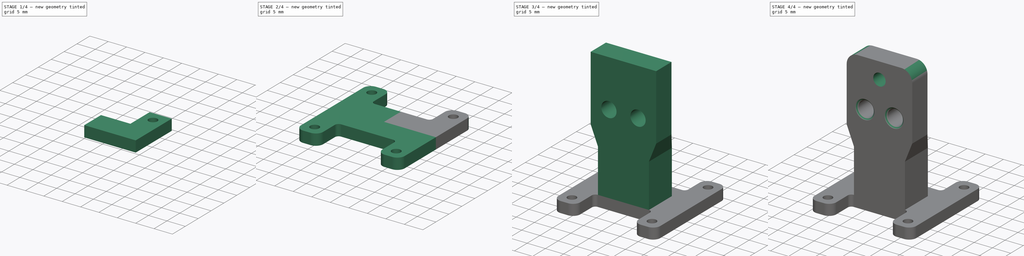
[diagram: build sequence overview — one tinted view per stage of 4, left to right]
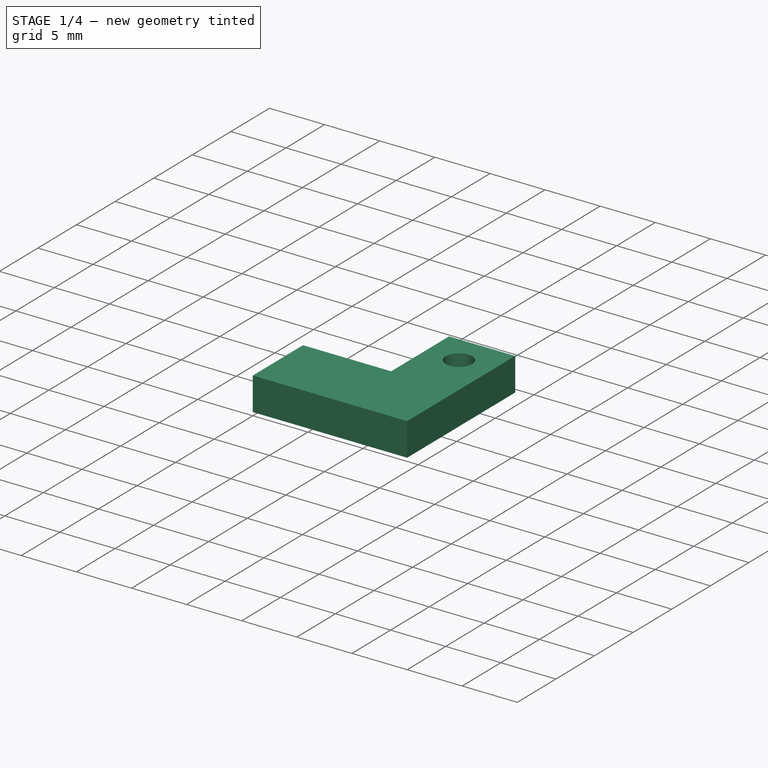
[diagram: stage 1 of 4 — iso view after this stage's code; geometry added in this stage tinted green]
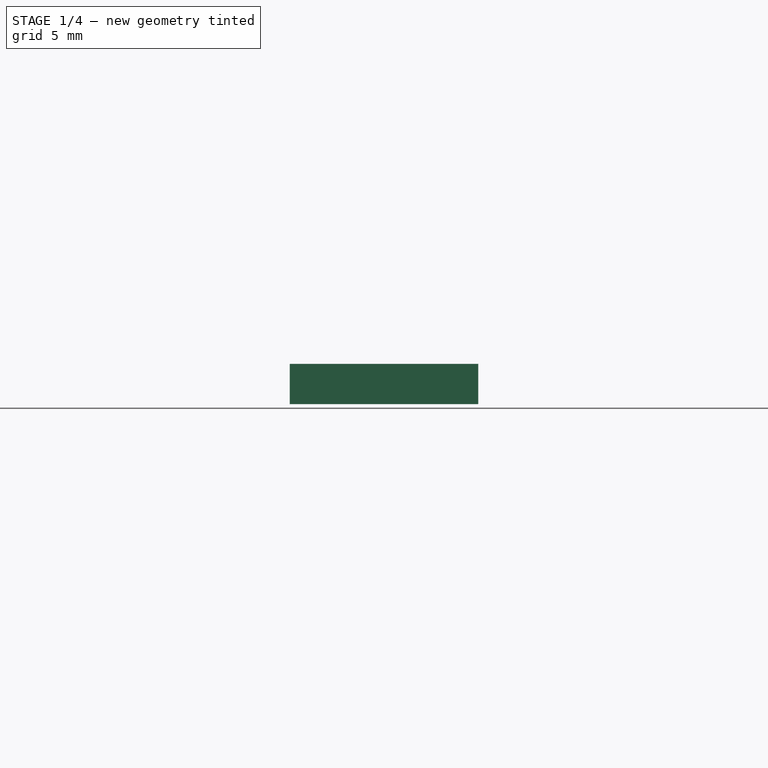
[diagram: stage 1 of 4 — front view after this stage's code; geometry added in this stage tinted green]
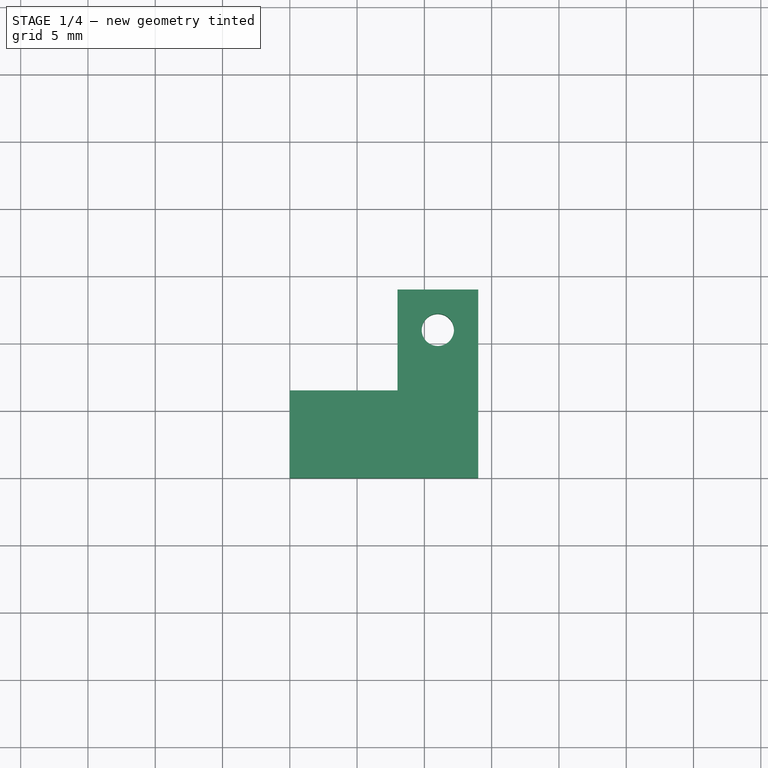
[diagram: stage 1 of 4 — top view after this stage's code; geometry added in this stage tinted green]
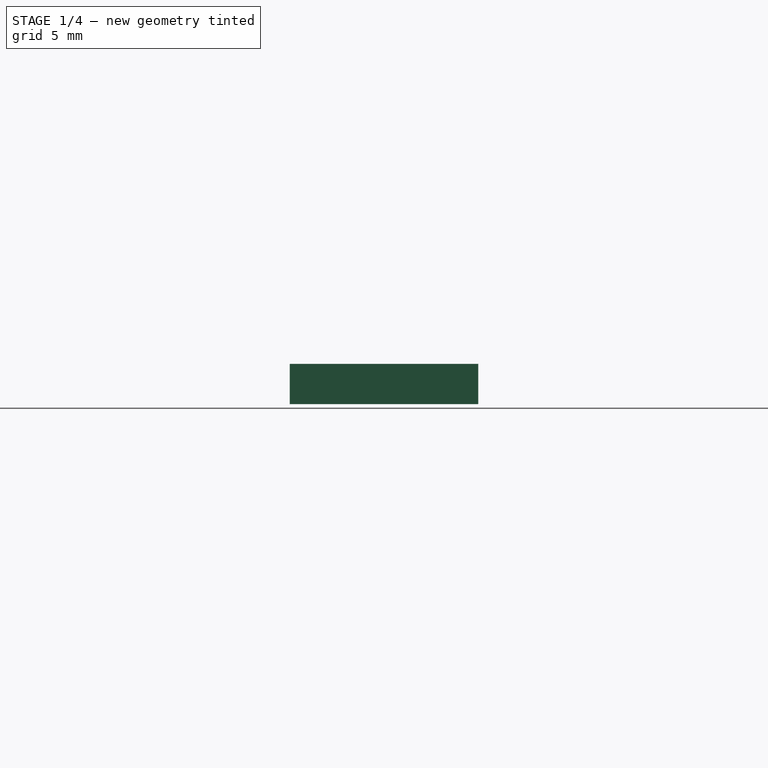
[diagram: stage 1 of 4 — right view after this stage's code; geometry added in this stage tinted green]
FCSTD DOCUMENT  (FreeCAD 0.19R)
Label: camera_holder
License: All rights reserved
LicenseURL: http://en.wikipedia.org/wiki/All_rights_reserved
objects: Sketcher::SketchObject×8, PartDesign::Pad×3, PartDesign::Fillet×3, PartDesign::Hole×2, PartDesign::Pocket×2, PartDesign::Mirrored×2, PartDesign::MultiTransform×1, PartDesign::AdditiveLoft×1, PartDesign::Chamfer×1, PartDesign::Body×1
note: 36 computed .brp shape members not serialized (recipe doc carries the construction recipe); baked Part::Feature solids carry a one-line shape summary decoded from their .brp

FEATURE [Sketcher::SketchObject] Sketch  label="bask_sk"
  FullyConstrained = true
  MapMode = 5
  Support = -> [XY_Plane]
  sketch-geometry (4):
    g0: LineSegment StartX=0 StartY=0 StartZ=0 EndX=14 EndY=0 EndZ=0
    g1: LineSegment StartX=14 StartY=0 StartZ=0 EndX=14 EndY=14 EndZ=0
    g2: LineSegment StartX=14 StartY=14 StartZ=0 EndX=0 EndY=14 EndZ=0
    g3: LineSegment StartX=0 StartY=14 StartZ=0 EndX=0 EndY=0 EndZ=0
  constraints (11):
    c: Coincident(g0,g1)
    c: Coincident(g1,g2)
    c: Coincident(g2,g3)
    c: Coincident(g3,g0)
    c: Horizontal(g0)
    c: Horizontal(g2)
    c: Vertical(g1)
    c: Vertical(g3)
    c: Coincident(g0,g-1)
    c: Distance(g2) = 14
    c: Distance(g1) = 14
FEATURE [PartDesign::Pad] Pad  label="base"
  Direction = (1,1,1)
  Length = 3
  Length2 = 100
  Profile = -> Sketch
  Reversed = true
  Type = 0
FEATURE [Sketcher::SketchObject] Sketch001  label="M2_hole_sk"
  FullyConstrained = true
  MapMode = 5
  Support = -> [Pad]
  sketch-geometry (1):
    g0: Circle CenterX=11 CenterY=11 CenterZ=0 NormalX=0 NormalY=0 NormalZ=1 AngleXU=0 Radius=1
  constraints (3):
    c: DistanceX(g-2,g0) = 11
    c: DistanceY(g-1,g0) = 11
    c: Radius(g0) = 1
FEATURE [PartDesign::Hole] Hole  label="M2_hole"
  BaseFeature = -> Pad
  Depth = 25
  DepthType = 1
  Diameter = 2.4
  DrillForDepth = false
  DrillPoint = 1
  DrillPointAngle = 118
  HoleCutCountersinkAngle = 90
  HoleCutCustomValues = false
  HoleCutDepth = 0
  HoleCutDiameter = 6.1
  HoleCutType = 0
  ModelActualThread = false
  Profile = -> Sketch001
  Tapered = false
  TaperedAngle = 90
  ThreadAngle = 0
  ThreadClass = 0
  ThreadCutOffInner = 0
  ThreadCutOffOuter = 0
  ThreadDirection = 0
  ThreadFit = 0
  ThreadPitch = 0
  ThreadSize = 6
  ThreadType = 1
  Threaded = false
FEATURE [Sketcher::SketchObject] Sketch002  label="usb_hole_sk"
  ExternalGeometry = -> [Hole]
  FullyConstrained = true
  MapMode = 5
  Support = -> [Hole]
  sketch-geometry (4):
    g0: LineSegment StartX=0 StartY=14 StartZ=0 EndX=8 EndY=14 EndZ=0
    g1: LineSegment StartX=8 StartY=14 StartZ=0 EndX=8 EndY=6.5 EndZ=0
    g2: LineSegment StartX=8 StartY=6.5 StartZ=0 EndX=0 EndY=6.5 EndZ=0
    g3: LineSegment StartX=0 StartY=6.5 StartZ=0 EndX=0 EndY=14 EndZ=0
  constraints (11):
    c: Coincident(g0,g1)
    c: Coincident(g1,g2)
    c: Coincident(g2,g3)
    c: Coincident(g3,g0)
    c: Horizontal(g0)
    c: Horizontal(g2)
    c: Vertical(g1)
    c: Vertical(g3)
    c: Coincident(g0,g-4)
    c: DistanceX(g0,g-3) = 3
    c: Distance(g3) = 7.5
FEATURE [PartDesign::Pocket] Pocket  label="usb_hole"
  BaseFeature = -> Hole
  Length = 5
  Length2 = 100
  Profile = -> Sketch002
  Type = 1
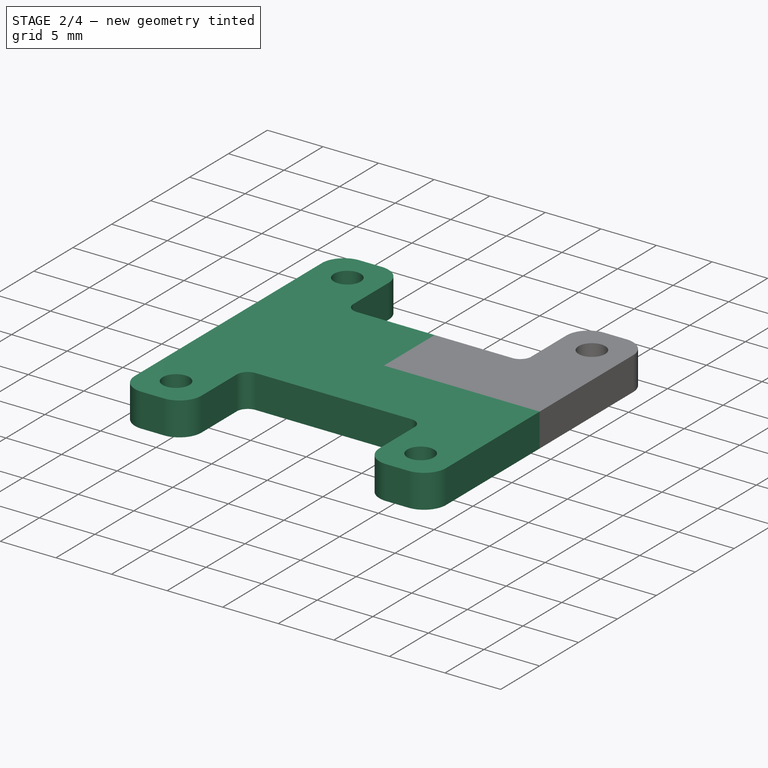
[diagram: stage 2 of 4 — iso view after this stage's code; geometry added in this stage tinted green]
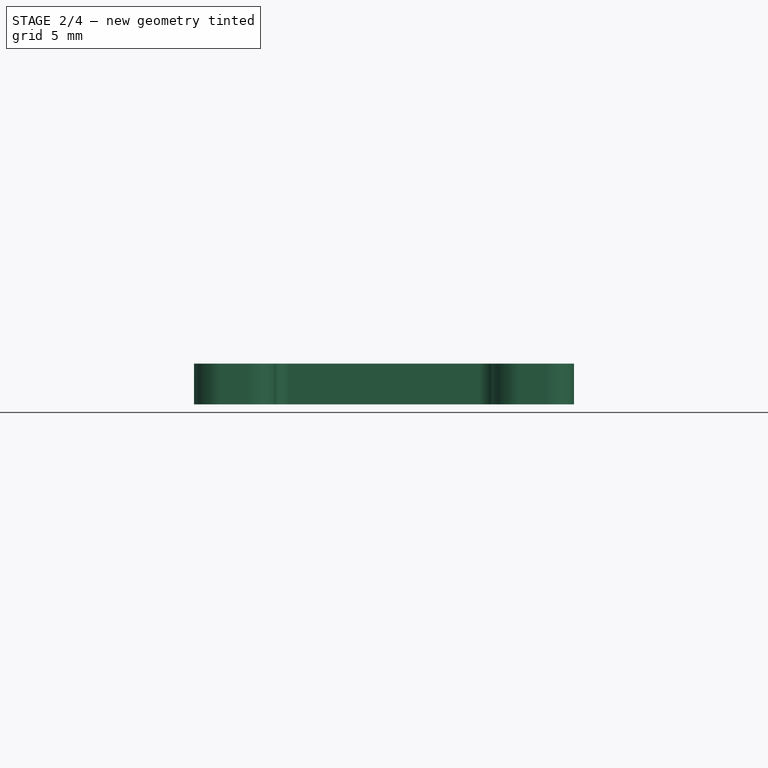
[diagram: stage 2 of 4 — front view after this stage's code; geometry added in this stage tinted green]
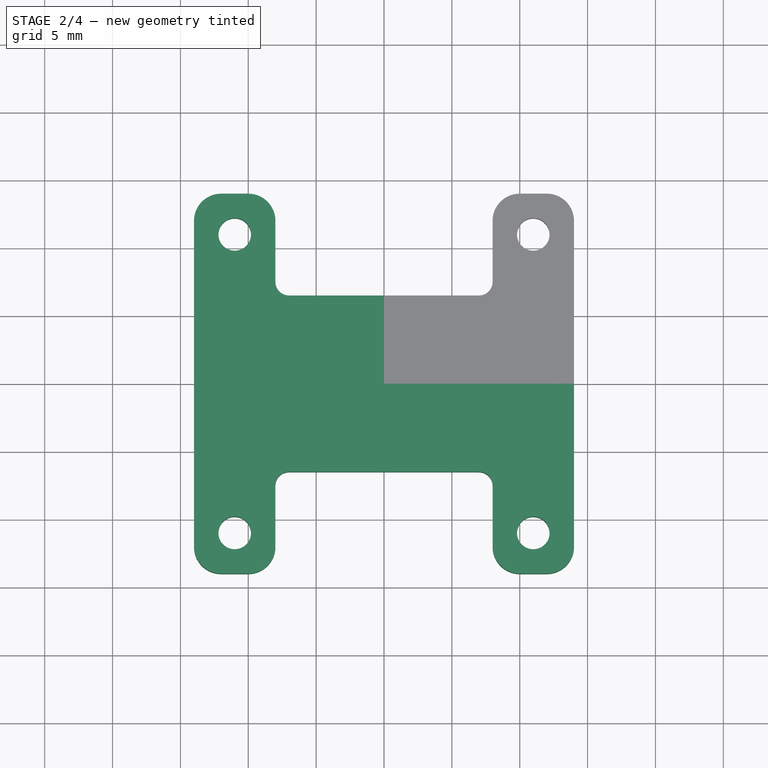
[diagram: stage 2 of 4 — top view after this stage's code; geometry added in this stage tinted green]
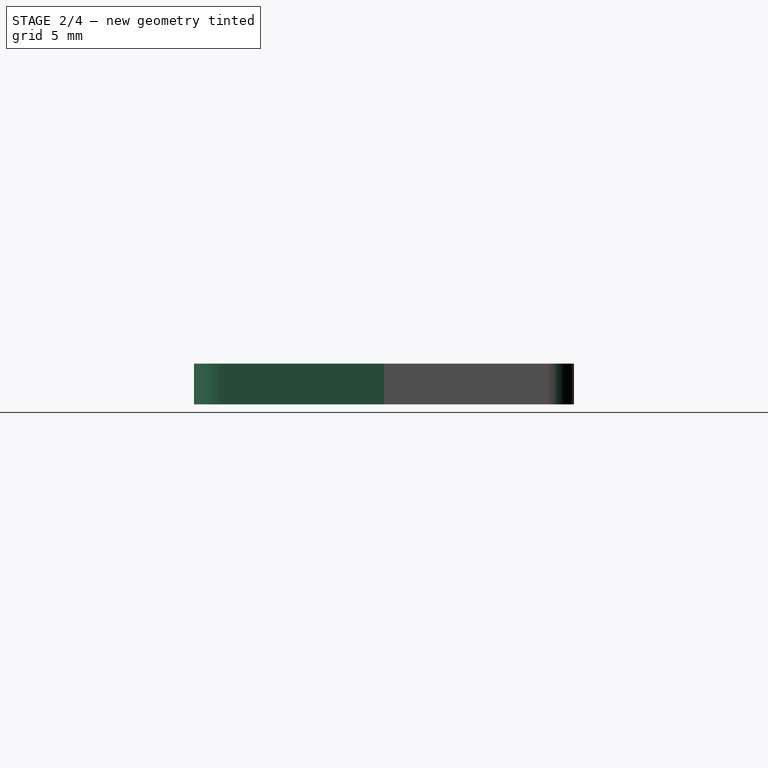
[diagram: stage 2 of 4 — right view after this stage's code; geometry added in this stage tinted green]
FEATURE [PartDesign::Fillet] Fillet  label="screw_plate_fillet"
  Base = -> Pocket [Edge20,Edge8]
  BaseFeature = -> Pocket
  Radius = 2
  SupportTransform = false
FEATURE [PartDesign::Fillet] Fillet001  label="inner_fillet"
  Base = -> Fillet [Edge24]
  BaseFeature = -> Fillet
  Radius = 1
  SupportTransform = false
FEATURE [PartDesign::Mirrored] Mirrored
  MirrorPlane = -> YZ_Plane
FEATURE [PartDesign::Mirrored] Mirrored001
  MirrorPlane = -> XZ_Plane
FEATURE [PartDesign::MultiTransform] MultiTransform  label="quad_plate"
  BaseFeature = -> Fillet001
  Originals = -> [Pad,Hole,Pocket,Fillet,Fillet001]
  Transformations = -> [Mirrored,Mirrored001]
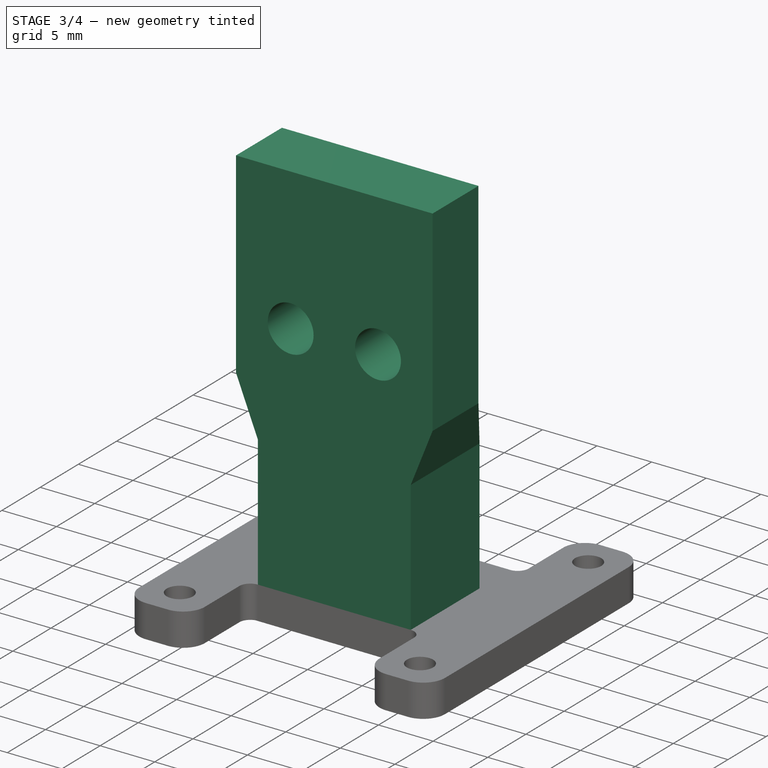
[diagram: stage 3 of 4 — iso view after this stage's code; geometry added in this stage tinted green]
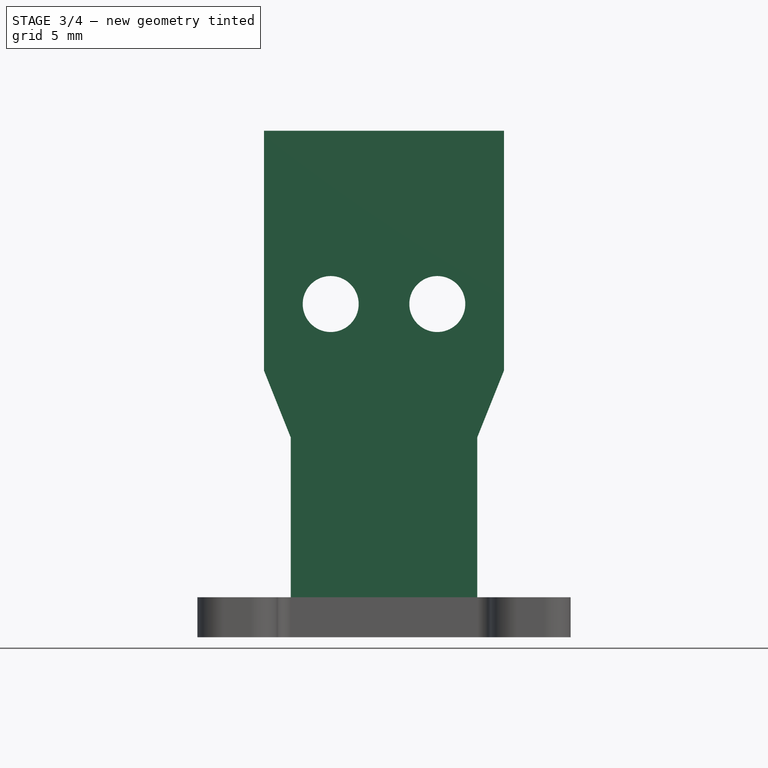
[diagram: stage 3 of 4 — front view after this stage's code; geometry added in this stage tinted green]
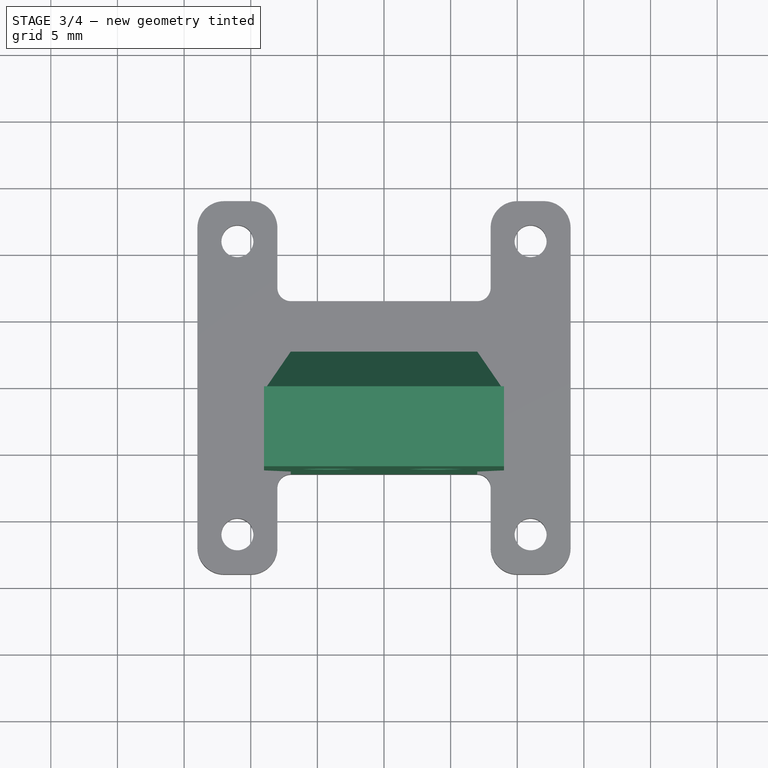
[diagram: stage 3 of 4 — top view after this stage's code; geometry added in this stage tinted green]
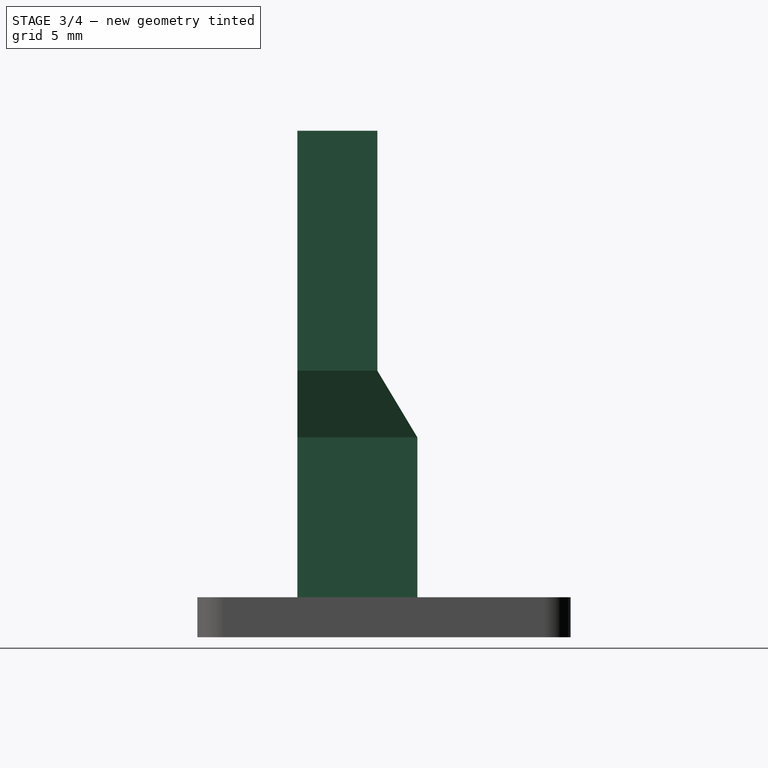
[diagram: stage 3 of 4 — right view after this stage's code; geometry added in this stage tinted green]
FEATURE [Sketcher::SketchObject] Sketch003  label="plate_connector_base_sk"
  ExternalGeometry = -> [MultiTransform]
  FullyConstrained = true
  MapMode = 5
  Support = -> [MultiTransform]
  sketch-geometry (4):
    g0: LineSegment StartX=-7 StartY=-6.5 StartZ=0 EndX=7 EndY=-6.5 EndZ=0
    g1: LineSegment StartX=7 StartY=-6.5 StartZ=0 EndX=7 EndY=2.5 EndZ=0
    g2: LineSegment StartX=7 StartY=2.5 StartZ=0 EndX=-7 EndY=2.5 EndZ=0
    g3: LineSegment StartX=-7 StartY=2.5 StartZ=0 EndX=-7 EndY=-6.5 EndZ=0
  constraints (10):
    c: Coincident(g0,g1)
    c: Coincident(g1,g2)
    c: Coincident(g2,g3)
    c: Coincident(g3,g0)
    c: Horizontal(g0)
    c: Vertical(g1)
    c: Vertical(g3)
    c: Symmetric(g2,g1,g-2)
    c: Coincident(g0,g-4)
    c: Distance(g3) = 9
FEATURE [PartDesign::Pad] Pad001  label="plate_connector_base"
  BaseFeature = -> MultiTransform
  Direction = (1,1,1)
  Length = 12
  Length2 = 100
  Profile = -> Sketch003
  Type = 0
FEATURE [Sketcher::SketchObject] Sketch004  label="neck_bot_sk_rotatable"
  AttachmentOffset = pos=(0,0,5) rot=(0,0,1;0rad)
  ExternalGeometry = -> [Pad001]
  FullyConstrained = true
  MapMode = 5
  Placement = pos=(0,0,17) rot=(0,0,1;0rad)
  Support = -> [Pad001]
  sketch-geometry (4):
    g0: LineSegment StartX=-9 StartY=-6.5 StartZ=0 EndX=9 EndY=-6.5 EndZ=0
    g1: LineSegment StartX=9 StartY=-6.5 StartZ=0 EndX=9 EndY=-0.5 EndZ=0
    g2: LineSegment StartX=9 StartY=-0.5 StartZ=0 EndX=-9 EndY=-0.5 EndZ=0
    g3: LineSegment StartX=-9 StartY=-0.5 StartZ=0 EndX=-9 EndY=-6.5 EndZ=0
  constraints (11):
    c: Coincident(g0,g1)
    c: Coincident(g1,g2)
    c: Coincident(g2,g3)
    c: Coincident(g3,g0)
    c: Horizontal(g2)
    c: Vertical(g1)
    c: Vertical(g3)
    c: Symmetric(g0,g0,g-2)
    c: Distance(g0) = 18
    c: Distance(g3) = 6
    c: PointOnObject(g0,g-3)
FEATURE [Sketcher::SketchObject] Sketch007  label="neck_top_sk"
  ExternalGeometry = -> [Pad001]
  FullyConstrained = true
  MapMode = 5
  Placement = pos=(0,0,12) rot=(0,0,1;0rad)
  Support = -> [Pad001]
  sketch-geometry (4):
    g0: LineSegment StartX=-7 StartY=2.5 StartZ=0 EndX=7 EndY=2.5 EndZ=0
    g1: LineSegment StartX=7 StartY=2.5 StartZ=0 EndX=7 EndY=-6.5 EndZ=0
    g2: LineSegment StartX=7 StartY=-6.5 StartZ=0 EndX=-7 EndY=-6.5 EndZ=0
    g3: LineSegment StartX=-7 StartY=-6.5 StartZ=0 EndX=-7 EndY=2.5 EndZ=0
  constraints (10):
    c: Coincident(g0,g1)
    c: Coincident(g1,g2)
    c: Coincident(g2,g3)
    c: Coincident(g3,g0)
    c: Horizontal(g0)
    c: Horizontal(g2)
    c: Vertical(g1)
    c: Vertical(g3)
    c: Coincident(g0,g-3)
    c: Coincident(g1,g-4)
FEATURE [PartDesign::AdditiveLoft] AdditiveLoft  label="neck"
  BaseFeature = -> Pad001
  Closed = false
  Profile = -> Sketch007
  Ruled = false
  Sections = -> [Sketch004]
FEATURE [PartDesign::Pad] Pad002  label="connector_base"
  BaseFeature = -> AdditiveLoft
  Direction = (1,1,1)
  Length = 18
  Length2 = 100
  Profile = -> AdditiveLoft [Face41]
  Type = 0
FEATURE [Sketcher::SketchObject] Sketch005  label="dowel_hole_sk"
  ExternalGeometry = -> [Pad002]
  FullyConstrained = true
  MapMode = 5
  Placement = pos=(0,-0.5,0) rot=(0,0.707107,0.707107;3.14159rad)
  Support = -> [Pad002]
  sketch-geometry (2):
    g0: Circle CenterX=-4 CenterY=22 CenterZ=0 NormalX=0 NormalY=0 NormalZ=1 AngleXU=0 Radius=2.1
    g1: Circle CenterX=4 CenterY=22 CenterZ=0 NormalX=0 NormalY=0 NormalZ=1 AngleXU=0 Radius=2.1
  constraints (5):
    c: Radius(g0) = 2.1
    c: DistanceX(g-2,g0) = -4
    c: Symmetric(g1,g0,g-2)
    c: Equal(g1,g0)
    c: Distance(g0,g-4) = 5
FEATURE [PartDesign::Pocket] Pocket001  label="dowel_hole"
  BaseFeature = -> Pad002
  Length = 5
  Length2 = 100
  Profile = -> Sketch005
  Type = 1
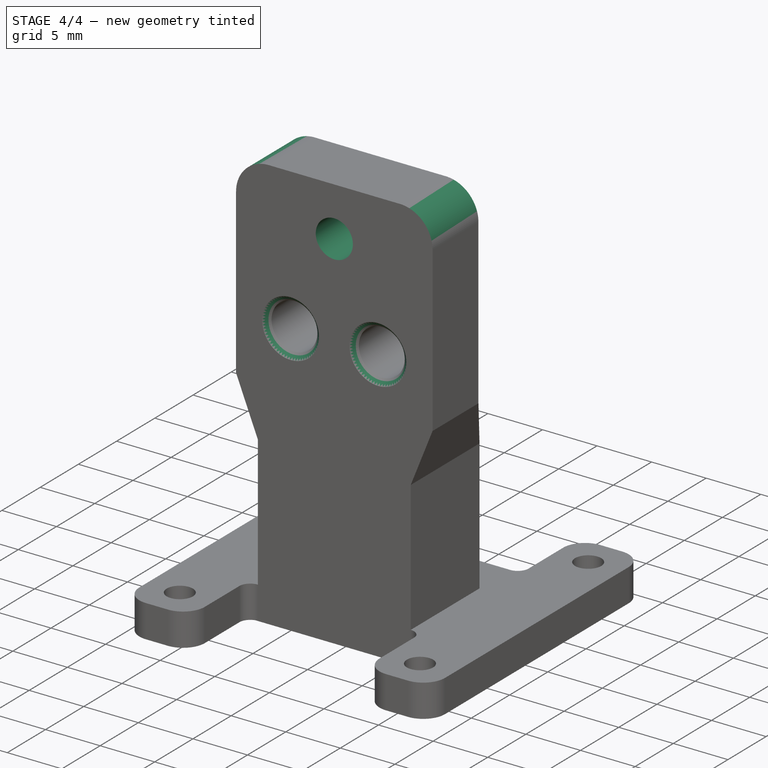
[diagram: stage 4 of 4 — iso view after this stage's code; geometry added in this stage tinted green]
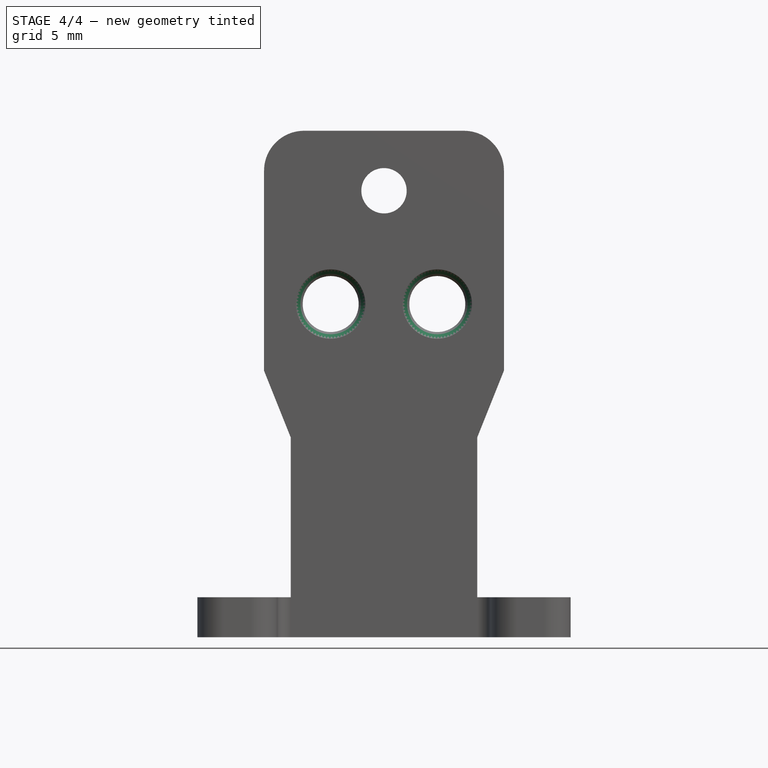
[diagram: stage 4 of 4 — front view after this stage's code; geometry added in this stage tinted green]
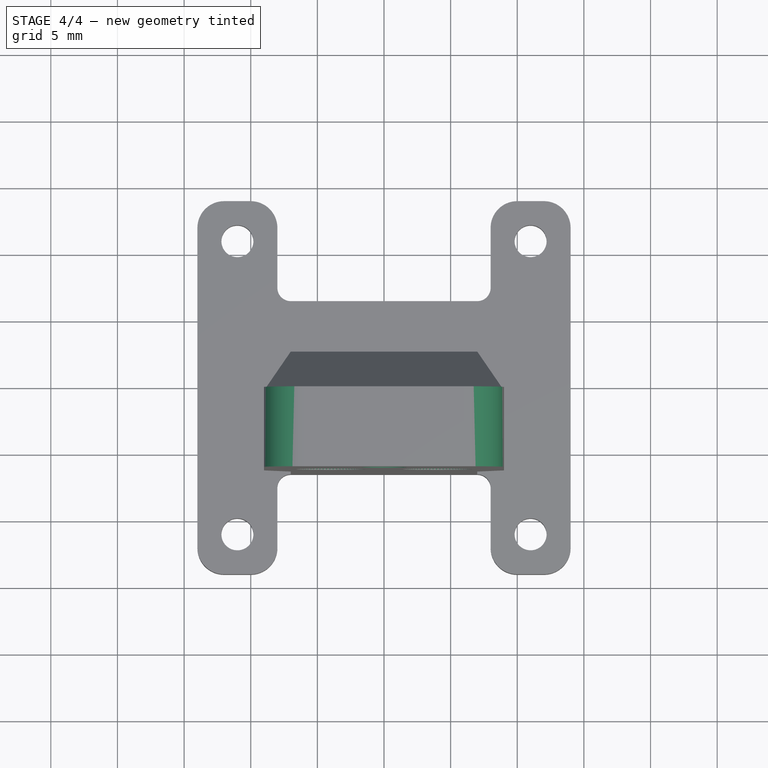
[diagram: stage 4 of 4 — top view after this stage's code; geometry added in this stage tinted green]
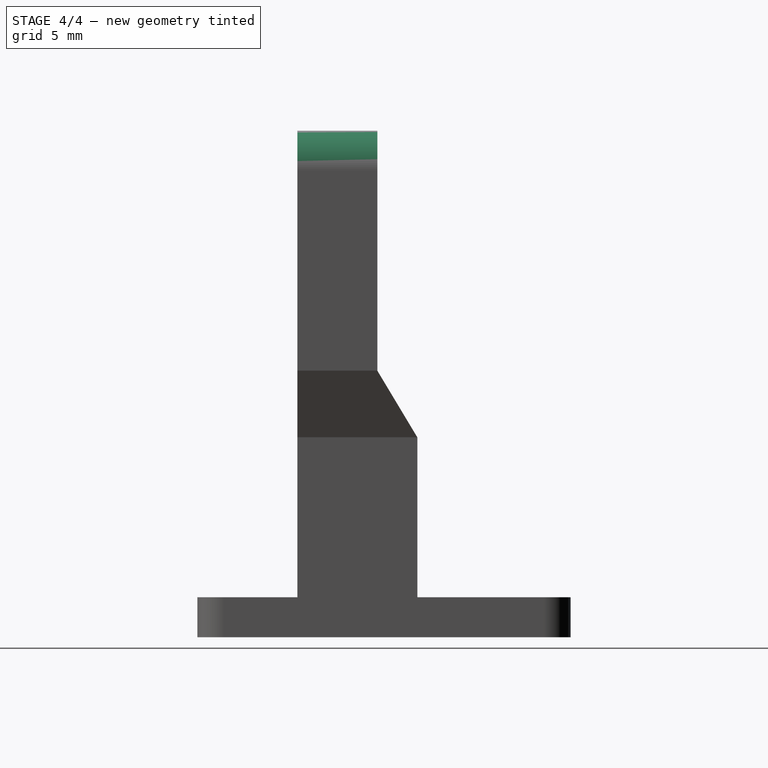
[diagram: stage 4 of 4 — right view after this stage's code; geometry added in this stage tinted green]
FEATURE [Sketcher::SketchObject] Sketch006  label="M3_hole_sk"
  ExternalGeometry = -> [Pocket001]
  FullyConstrained = true
  MapMode = 5
  Placement = pos=(0,-0.5,0) rot=(0,0.707107,0.707107;3.14159rad)
  Support = -> [Pocket001]
  sketch-geometry (1):
    g0: Circle CenterX=0 CenterY=30.5 CenterZ=0 NormalX=0 NormalY=0 NormalZ=1 AngleXU=0 Radius=1
  constraints (3):
    c: PointOnObject(g0,g-2)
    c: Radius(g0) = 1
    c: DistanceY(g-3,g0) = 8.5
FEATURE [PartDesign::Hole] Hole001  label="M3_hole"
  BaseFeature = -> Pocket001
  Depth = 25
  DepthType = 1
  Diameter = 3.4
  DrillForDepth = false
  DrillPoint = 1
  DrillPointAngle = 118
  HoleCutCountersinkAngle = 90
  HoleCutCustomValues = false
  HoleCutDepth = 0
  HoleCutDiameter = 6.1
  HoleCutType = 0
  ModelActualThread = false
  Profile = -> Sketch006
  Tapered = false
  TaperedAngle = 90
  ThreadAngle = 0
  ThreadClass = 0
  ThreadCutOffInner = 0
  ThreadCutOffOuter = 0
  ThreadDirection = 0
  ThreadFit = 0
  ThreadPitch = 0
  ThreadSize = 9
  ThreadType = 1
  Threaded = false
FEATURE [PartDesign::Fillet] Fillet002  label="tip_fillet"
  Base = -> Hole001 [Edge122,Edge151]
  BaseFeature = -> Hole001
  Radius = 3
  SupportTransform = false
FEATURE [PartDesign::Chamfer] Chamfer  label="dowel_hole_chamfer"
  Angle = 45
  Base = -> Fillet002 [Edge11,Edge12]
  BaseFeature = -> Fillet002
  ChamferType = 0
  FlipDirection = false
  Size = 0.5
  Size2 = 1
  SupportTransform = false
FEATURE [PartDesign::Body] Body  label="holder_plate"
  Group = -> [Sketch,Pad,Sketch001,Hole,Sketch002,Pocket,Fillet,Fillet001,MultiTransform,Mirrored,Mirrored001,Sketch003,Pad001,Sketch007,Sketch004,AdditiveLoft,Pad002,Sketch005,Pocket001,Sketch006,Hole001,Fillet002,Chamfer]
  Origin = -> Origin
  Tip = -> Chamfer
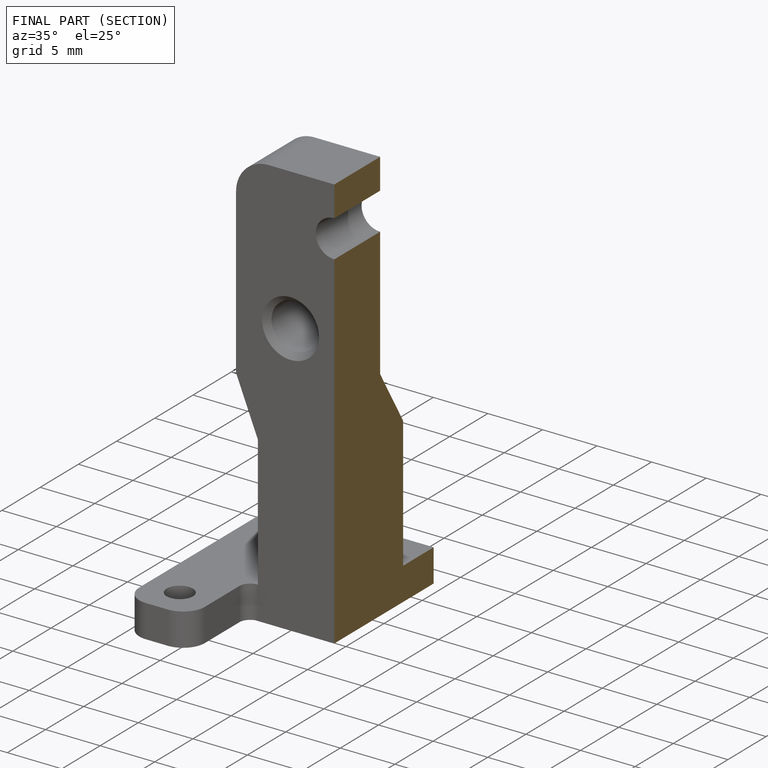
[diagram: finished part — half-section view (interior)]
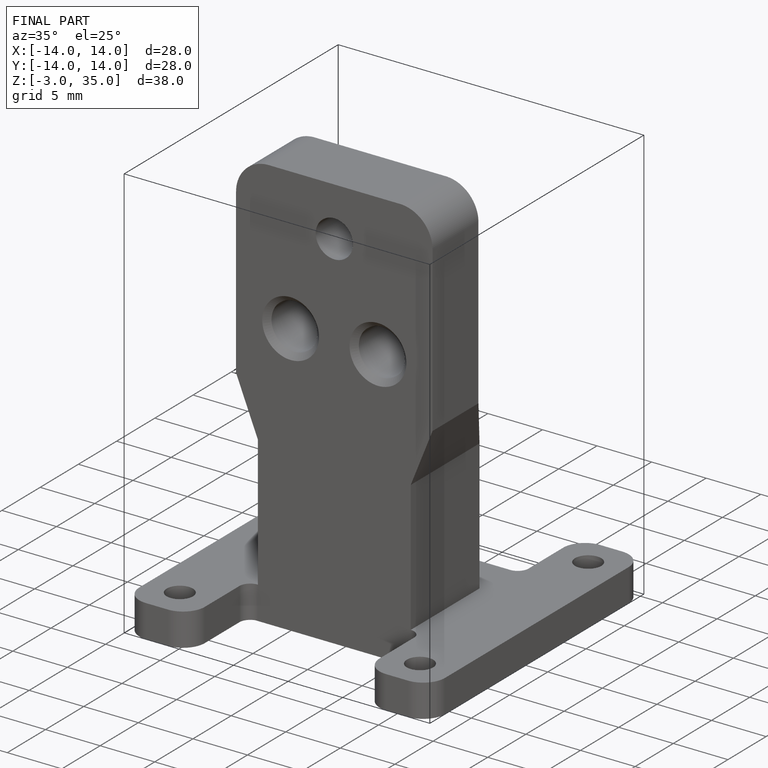
[diagram: finished part — iso view with bounding-box wireframe]
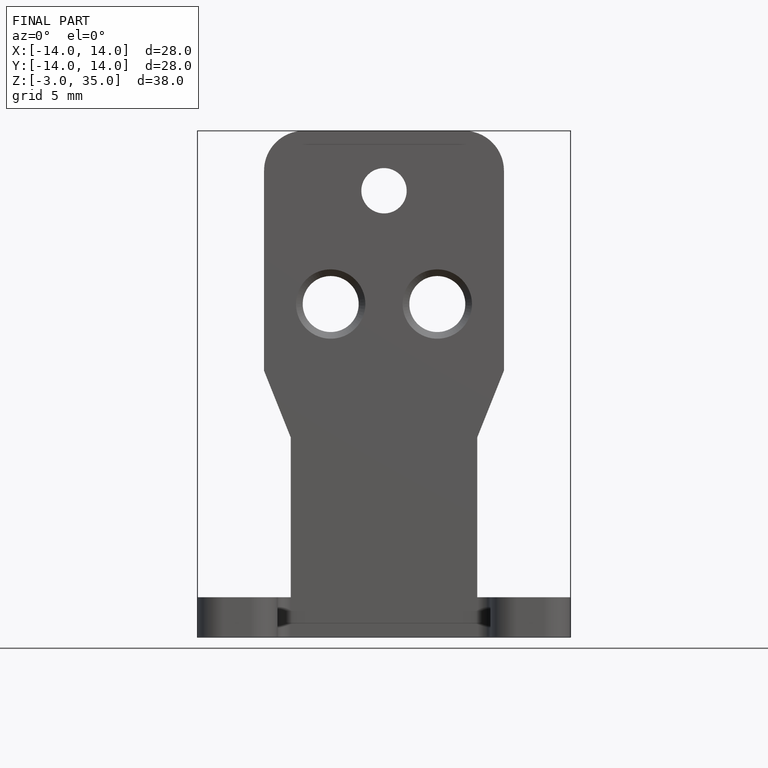
[diagram: finished part — front view with bounding-box wireframe]
